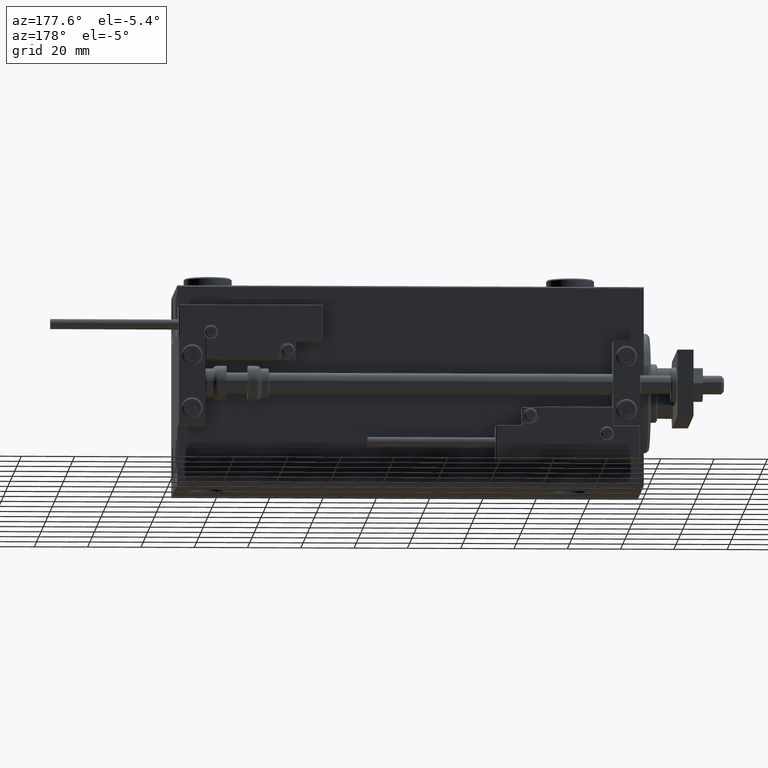
[diagram: clean part render]
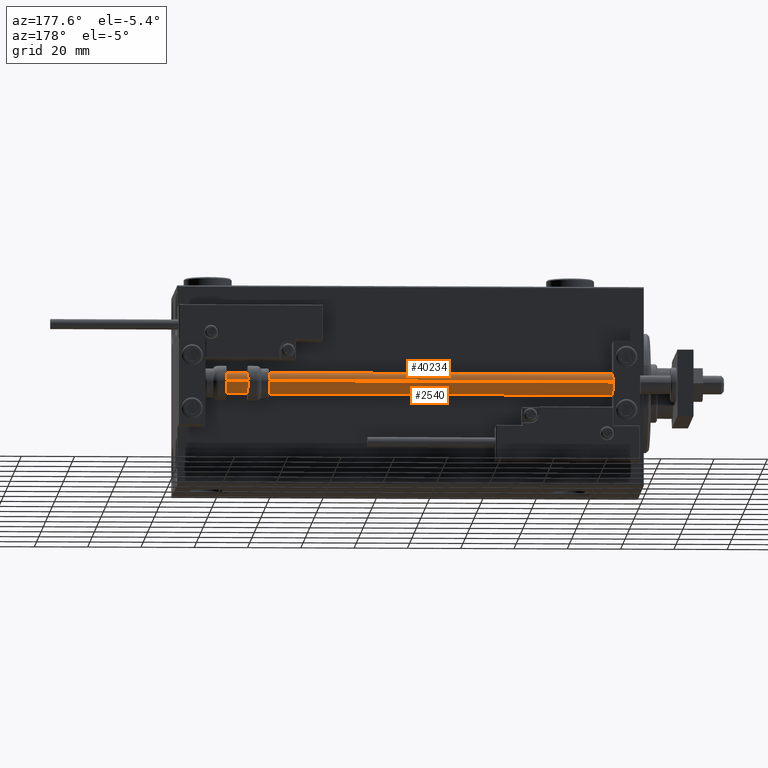
[diagram: same view with one multi-face feature highlighted, each face labeled with its STEP entity id]
A machine part, auxiliary view. The highlighted faces form ONE feature: a constant-radius fillet chain: 2 tangent blend faces with common blend radius 4 mm. The faces share edges in the B-rep.
Their STEP definitions:
[1] entity #40234 (Cylinder):
#153 = CARTESIAN_POINT ( 'NONE',  ( 0.000000000000000000, 0.000000000000000000, 175.0000000000000000 ) ) ;
#2618 = EDGE_LOOP ( 'NONE', ( #34868, #28087, #3630, #5426 ) ) ;
#2868 = DIRECTION ( 'NONE',  ( -0.000000000000000000, -0.000000000000000000, 1.000000000000000000 ) ) ;
#3270 = CARTESIAN_POINT ( 'NONE',  ( 0.000000000000000000, 0.000000000000000000, 175.0000000000000000 ) ) ;
#3630 = ORIENTED_EDGE ( 'NONE', *, *, #34699, .T. ) ;
#3793 = CARTESIAN_POINT ( 'NONE',  ( -4.000000000000000000, 0.000000000000000000, 175.0000000000000000 ) ) ;
#5426 = ORIENTED_EDGE ( 'NONE', *, *, #40625, .F. ) ;
#5661 = CIRCLE ( 'NONE', #22268, 4.000000000000000000 ) ;
#6048 = VERTEX_POINT ( 'NONE', #18873 ) ;
#6451 = EDGE_CURVE ( 'NONE', #16277, #35997, #5661, .T. ) ;
#7160 = CARTESIAN_POINT ( 'NONE',  ( -4.000000000000000000, 0.000000000000000000, 175.0000000000000000 ) ) ;
#7414 = DIRECTION ( 'NONE',  ( -0.000000000000000000, -0.000000000000000000, -1.000000000000000000 ) ) ;
#8747 = CYLINDRICAL_SURFACE ( 'NONE', #42650, 4.000000000000000000 ) ;
#9345 = VECTOR ( 'NONE', #50713, 1000.000000000000000 ) ;
#11707 = VECTOR ( 'NONE', #7414, 1000.000000000000000 ) ;
#13576 = VERTEX_POINT ( 'NONE', #50360 ) ;
#14684 = CARTESIAN_POINT ( 'NONE',  ( 4.000000000000000000, 4.898587196589412829E-16, 175.0000000000000000 ) ) ;
#16277 = VERTEX_POINT ( 'NONE', #14684 ) ;
#18619 = LINE ( 'NONE', #34514, #11707 ) ;
#18873 = CARTESIAN_POINT ( 'NONE',  ( 4.000000000000000000, 4.898587196589412829E-16, 2.000000000000029310 ) ) ;
#22268 = AXIS2_PLACEMENT_3D ( 'NONE', #3270, #23317, #27498 ) ;
#23317 = DIRECTION ( 'NONE',  ( 0.000000000000000000, 0.000000000000000000, 1.000000000000000000 ) ) ;
#27498 = DIRECTION ( 'NONE',  ( 1.000000000000000000, 0.000000000000000000, 0.000000000000000000 ) ) ;
#28087 = ORIENTED_EDGE ( 'NONE', *, *, #32799, .T. ) ;
#31947 = DIRECTION ( 'NONE',  ( -0.000000000000000000, -0.000000000000000000, -1.000000000000000000 ) ) ;
#32799 = EDGE_CURVE ( 'NONE', #16277, #6048, #18619, .T. ) ;
#34514 = CARTESIAN_POINT ( 'NONE',  ( 4.000000000000000000, 4.898587196589412829E-16, 175.0000000000000000 ) ) ;
#34699 = EDGE_CURVE ( 'NONE', #6048, #13576, #49244, .T. ) ;
#34868 = ORIENTED_EDGE ( 'NONE', *, *, #6451, .F. ) ;
#35997 = VERTEX_POINT ( 'NONE', #7160 ) ;
#36115 = DIRECTION ( 'NONE',  ( -1.000000000000000000, 0.000000000000000000, 0.000000000000000000 ) ) ;
#37573 = AXIS2_PLACEMENT_3D ( 'NONE', #38559, #2868, #51083 ) ;
#38559 = CARTESIAN_POINT ( 'NONE',  ( 0.000000000000000000, 0.000000000000000000, 2.000000000000029310 ) ) ;
#40234 = ADVANCED_FACE ( 'NONE', ( #44451 ), #8747, .T. ) ;
#40625 = EDGE_CURVE ( 'NONE', #35997, #13576, #51486, .T. ) ;
#42650 = AXIS2_PLACEMENT_3D ( 'NONE', #153, #31947, #36115 ) ;
#44451 = FACE_OUTER_BOUND ( 'NONE', #2618, .T. ) ;
#49244 = CIRCLE ( 'NONE', #37573, 4.000000000000000000 ) ;
#50360 = CARTESIAN_POINT ( 'NONE',  ( -4.000000000000000000, 0.000000000000000000, 2.000000000000029310 ) ) ;
#50713 = DIRECTION ( 'NONE',  ( -0.000000000000000000, -0.000000000000000000, -1.000000000000000000 ) ) ;
#51083 = DIRECTION ( 'NONE',  ( 1.000000000000000000, 0.000000000000000000, 0.000000000000000000 ) ) ;
#51486 = LINE ( 'NONE', #3793, #9345 ) ;
[2] entity #2540 (Cylinder):
#2540 = ADVANCED_FACE ( 'NONE', ( #40882 ), #5184, .T. ) ;
#3793 = CARTESIAN_POINT ( 'NONE',  ( -4.000000000000000000, 0.000000000000000000, 175.0000000000000000 ) ) ;
#4636 = EDGE_CURVE ( 'NONE', #35997, #16277, #33871, .T. ) ;
#5184 = CYLINDRICAL_SURFACE ( 'NONE', #39634, 4.000000000000000000 ) ;
#6048 = VERTEX_POINT ( 'NONE', #18873 ) ;
#7160 = CARTESIAN_POINT ( 'NONE',  ( -4.000000000000000000, 0.000000000000000000, 175.0000000000000000 ) ) ;
#7414 = DIRECTION ( 'NONE',  ( -0.000000000000000000, -0.000000000000000000, -1.000000000000000000 ) ) ;
#8304 = CIRCLE ( 'NONE', #27410, 4.000000000000000000 ) ;
#9345 = VECTOR ( 'NONE', #50713, 1000.000000000000000 ) ;
#10297 = DIRECTION ( 'NONE',  ( -0.000000000000000000, -0.000000000000000000, 1.000000000000000000 ) ) ;
#10350 = ORIENTED_EDGE ( 'NONE', *, *, #40625, .T. ) ;
#11707 = VECTOR ( 'NONE', #7414, 1000.000000000000000 ) ;
#13262 = CARTESIAN_POINT ( 'NONE',  ( 0.000000000000000000, 0.000000000000000000, 175.0000000000000000 ) ) ;
#13576 = VERTEX_POINT ( 'NONE', #50360 ) ;
#14684 = CARTESIAN_POINT ( 'NONE',  ( 4.000000000000000000, 4.898587196589412829E-16, 175.0000000000000000 ) ) ;
#15569 = ORIENTED_EDGE ( 'NONE', *, *, #30253, .T. ) ;
#16277 = VERTEX_POINT ( 'NONE', #14684 ) ;
#17897 = DIRECTION ( 'NONE',  ( 0.000000000000000000, 0.000000000000000000, 1.000000000000000000 ) ) ;
#18619 = LINE ( 'NONE', #34514, #11707 ) ;
#18873 = CARTESIAN_POINT ( 'NONE',  ( 4.000000000000000000, 4.898587196589412829E-16, 2.000000000000029310 ) ) ;
#21526 = ORIENTED_EDGE ( 'NONE', *, *, #32799, .F. ) ;
#26191 = DIRECTION ( 'NONE',  ( 1.000000000000000000, 0.000000000000000000, 0.000000000000000000 ) ) ;
#27410 = AXIS2_PLACEMENT_3D ( 'NONE', #49408, #10297, #26191 ) ;
#29144 = DIRECTION ( 'NONE',  ( -0.000000000000000000, -0.000000000000000000, -1.000000000000000000 ) ) ;
#29868 = DIRECTION ( 'NONE',  ( 1.000000000000000000, 0.000000000000000000, 0.000000000000000000 ) ) ;
#30253 = EDGE_CURVE ( 'NONE', #13576, #6048, #8304, .T. ) ;
#32799 = EDGE_CURVE ( 'NONE', #16277, #6048, #18619, .T. ) ;
#33871 = CIRCLE ( 'NONE', #38883, 4.000000000000000000 ) ;
#34514 = CARTESIAN_POINT ( 'NONE',  ( 4.000000000000000000, 4.898587196589412829E-16, 175.0000000000000000 ) ) ;
#35997 = VERTEX_POINT ( 'NONE', #7160 ) ;
#38883 = AXIS2_PLACEMENT_3D ( 'NONE', #49688, #17897, #29868 ) ;
#39634 = AXIS2_PLACEMENT_3D ( 'NONE', #13262, #29144, #45043 ) ;
#40625 = EDGE_CURVE ( 'NONE', #35997, #13576, #51486, .T. ) ;
#40882 = FACE_OUTER_BOUND ( 'NONE', #44644, .T. ) ;
#44644 = EDGE_LOOP ( 'NONE', ( #21526, #50691, #10350, #15569 ) ) ;
#45043 = DIRECTION ( 'NONE',  ( -1.000000000000000000, 0.000000000000000000, 0.000000000000000000 ) ) ;
#49408 = CARTESIAN_POINT ( 'NONE',  ( 0.000000000000000000, 0.000000000000000000, 2.000000000000029310 ) ) ;
#49688 = CARTESIAN_POINT ( 'NONE',  ( 0.000000000000000000, 0.000000000000000000, 175.0000000000000000 ) ) ;
#50360 = CARTESIAN_POINT ( 'NONE',  ( -4.000000000000000000, 0.000000000000000000, 2.000000000000029310 ) ) ;
#50691 = ORIENTED_EDGE ( 'NONE', *, *, #4636, .F. ) ;
#50713 = DIRECTION ( 'NONE',  ( -0.000000000000000000, -0.000000000000000000, -1.000000000000000000 ) ) ;
#51486 = LINE ( 'NONE', #3793, #9345 ) ;